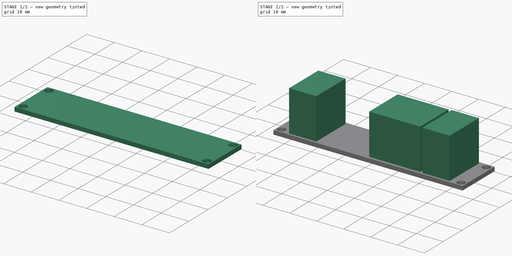
[diagram: build sequence overview — one tinted view per stage of 2, left to right]
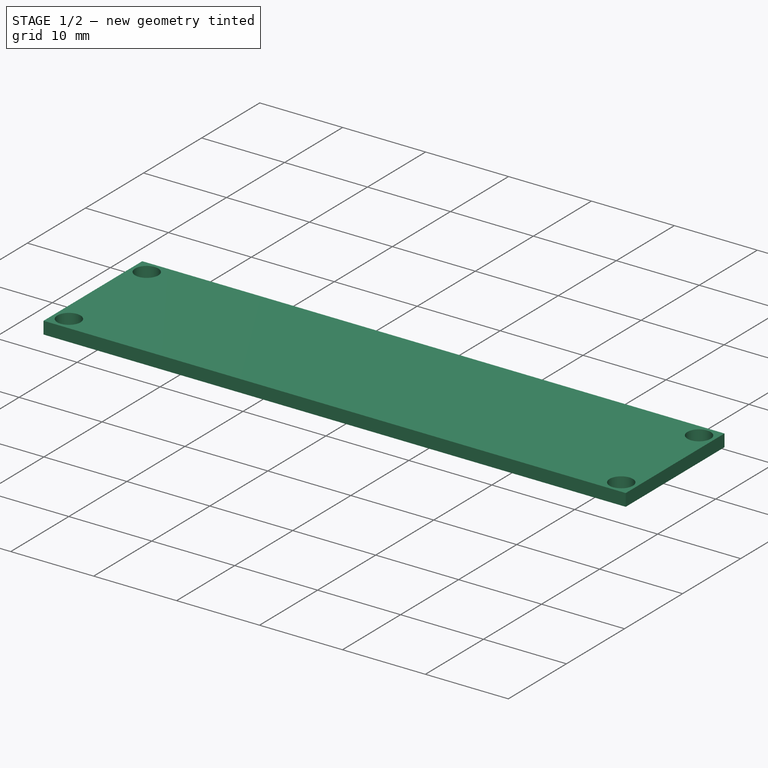
[diagram: stage 1 of 2 — iso view after this stage's code; geometry added in this stage tinted green]
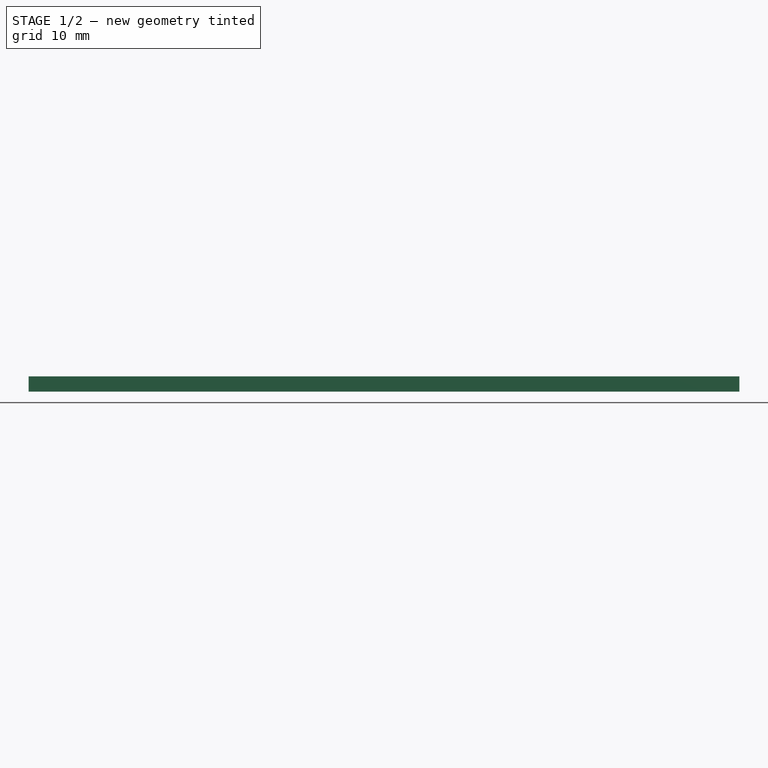
[diagram: stage 1 of 2 — front view after this stage's code; geometry added in this stage tinted green]
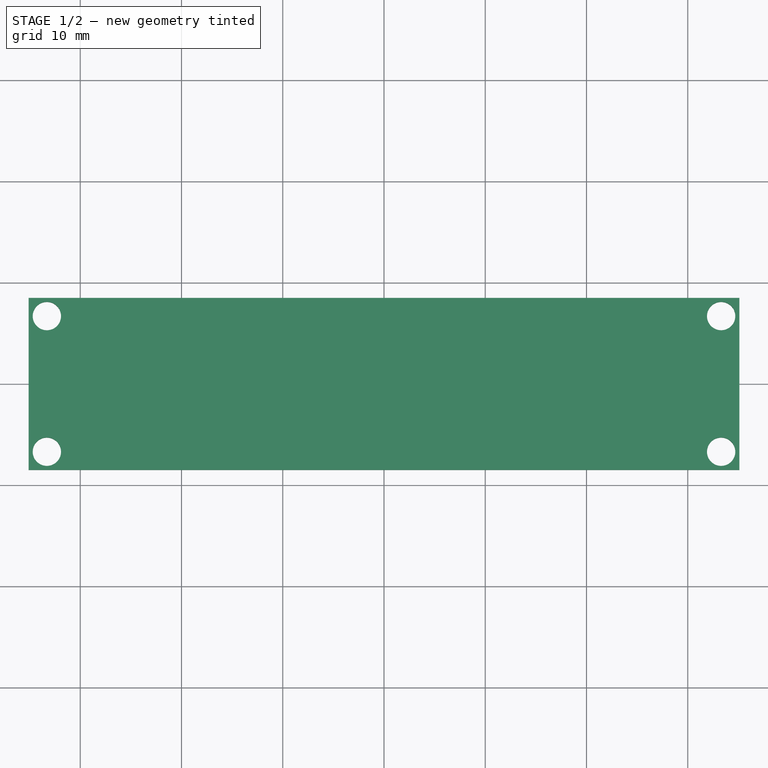
[diagram: stage 1 of 2 — top view after this stage's code; geometry added in this stage tinted green]
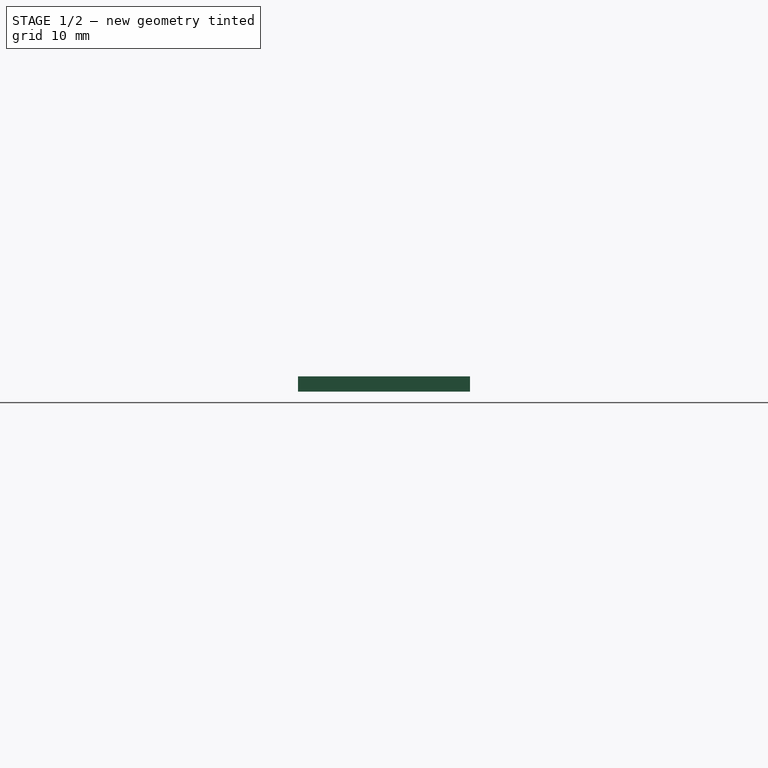
[diagram: stage 1 of 2 — right view after this stage's code; geometry added in this stage tinted green]
FCSTD DOCUMENT  (FreeCAD 0.22R36807 (Git))
Label: Relay Switch 3.3V in 10A, 250V out
License: Creative Commons Attribution 4.0
LicenseURL: https://creativecommons.org/licenses/by/4.0/
objects: Sketcher::SketchObject×2, PartDesign::Pad×2, Spreadsheet::Sheet×1, PartDesign::Body×1
note: 7 computed .brp shape members not serialized (recipe doc carries the construction recipe); baked Part::Feature solids carry a one-line shape summary decoded from their .brp

FEATURE [Spreadsheet::Sheet] Spreadsheet  label="config"
  cells = A2='width; B2(width)=17; A3='length; B3(length)=70.2; A4='boltHoleRadius; B4(boltHoleRadius)=1.4; A5='boltHoleDistanceFromEdge; B5(boltHoleCenterToEdge)=1.8
FEATURE [Sketcher::SketchObject] Sketch
  AttachmentSupport = -> [XY_Plane]
  FullyConstrained = true
  MapMode = 5
  expr: Constraints[12] = <<config>>.boltHoleRadius
  expr: Constraints[18] = <<config>>.boltHoleCenterToEdge
  expr: Constraints[19] = <<config>>.boltHoleCenterToEdge
  expr: Constraints[20] = <<config>>.boltHoleCenterToEdge
  expr: Constraints[21] = <<config>>.boltHoleCenterToEdge
  sketch-geometry (9):
    g0: LineSegment StartX=-35.1 StartY=-8.5 StartZ=0 EndX=35.1 EndY=-8.5 EndZ=0
    g1: LineSegment StartX=35.1 StartY=-8.5 StartZ=0 EndX=35.1 EndY=8.5 EndZ=0
    g2: LineSegment StartX=35.1 StartY=8.5 StartZ=0 EndX=-35.1 EndY=8.5 EndZ=0
    g3: LineSegment StartX=-35.1 StartY=8.5 StartZ=0 EndX=-35.1 EndY=-8.5 EndZ=0
    g4: GeomPoint X=0 Y=0 Z=0
    g5: Circle CenterX=-33.3 CenterY=6.7 CenterZ=0 NormalX=0 NormalY=0 NormalZ=1 AngleXU=0 Radius=1.4
    g6: Circle CenterX=33.3 CenterY=6.7 CenterZ=0 NormalX=0 NormalY=0 NormalZ=1 AngleXU=0 Radius=1.4
    g7: Circle CenterX=-33.3 CenterY=-6.7 CenterZ=0 NormalX=0 NormalY=0 NormalZ=1 AngleXU=0 Radius=1.4
    g8: Circle CenterX=33.3 CenterY=-6.7 CenterZ=0 NormalX=0 NormalY=0 NormalZ=1 AngleXU=0 Radius=1.4
  constraints (22):
    c: Coincident(g0,g1)
    c: Coincident(g1,g2)
    c: Coincident(g2,g3)
    c: Coincident(g3,g0)
    c: Horizontal(g0)
    c: Horizontal(g2)
    c: Vertical(g1)
    c: Vertical(g3)
    c: Symmetric(g2,g0,g4)
    c: Distance(g1,g3) = 70.2
    c: Distance(g0,g2) = 17
    c: Coincident(g4,g-1)
    c: Radius(g5) = 1.4
    c: Equal(g7,g8)
    c: Equal(g8,g6)
    c: Equal(g6,g5)
    c: Symmetric(g5,g8,g4)
    c: Symmetric(g7,g6,g4)
    c: DistanceX(g2,g5) = 1.8
    c: DistanceX(g6,g1) = 1.8
    c: DistanceY(g5,g2) = 1.8
    c: DistanceY(g6,g1) = 1.8
FEATURE [PartDesign::Pad] Pad
  Direction = (0,0,1)
  Length = 1.5
  Length2 = 10
  Profile = -> Sketch
  ReferenceAxis = -> Sketch [N_Axis]
  Suppressed = false
  Type = 0
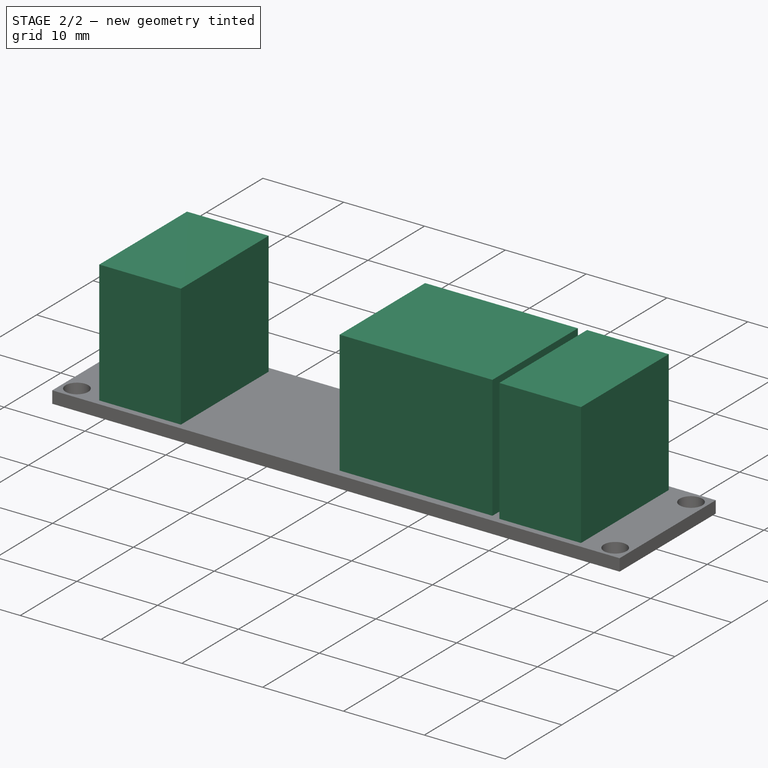
[diagram: stage 2 of 2 — iso view after this stage's code; geometry added in this stage tinted green]
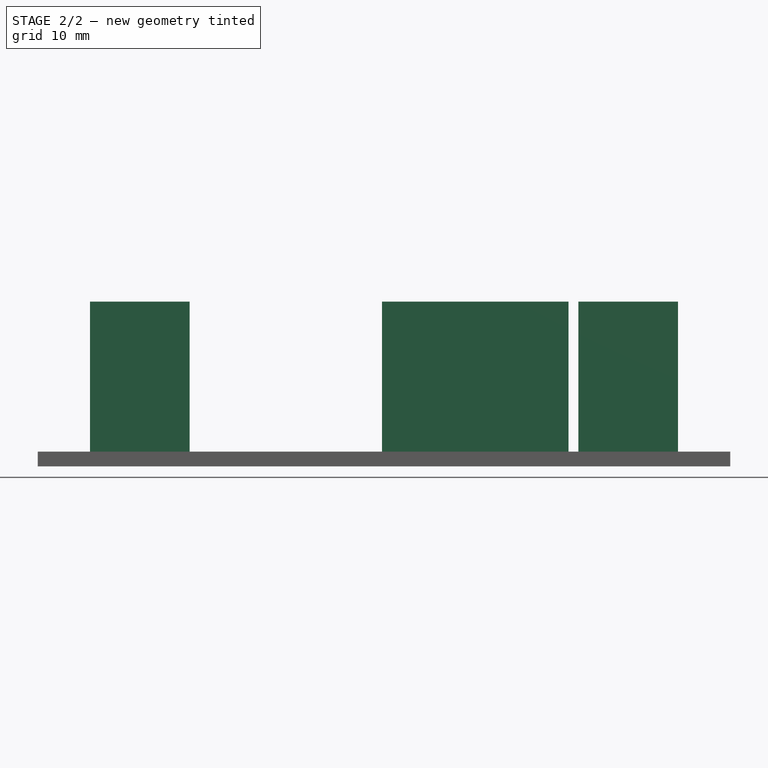
[diagram: stage 2 of 2 — front view after this stage's code; geometry added in this stage tinted green]
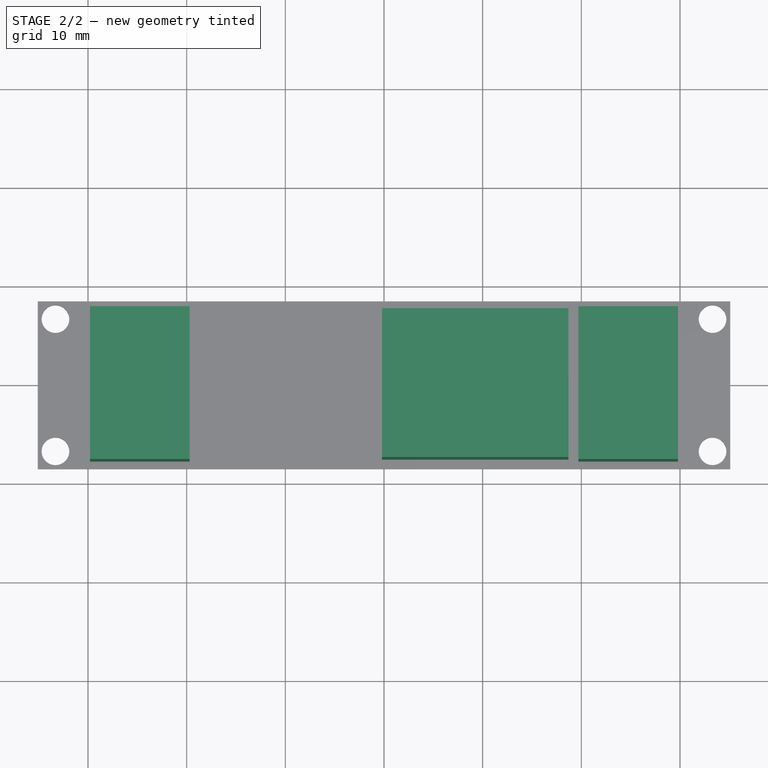
[diagram: stage 2 of 2 — top view after this stage's code; geometry added in this stage tinted green]
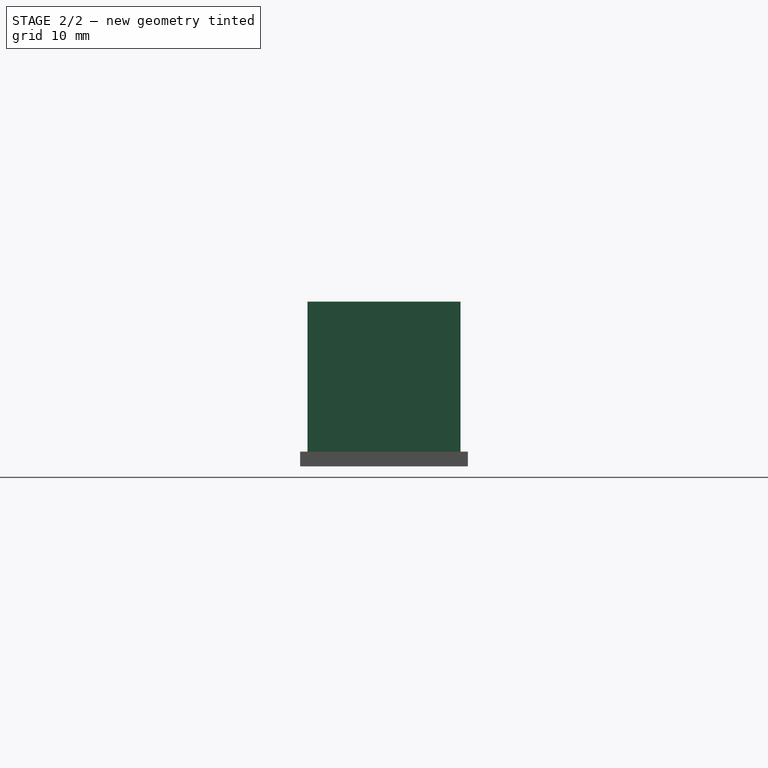
[diagram: stage 2 of 2 — right view after this stage's code; geometry added in this stage tinted green]
FEATURE [Sketcher::SketchObject] Sketch001
  AttachmentSupport = -> [Pad]
  ExternalGeometry = -> [Sketch]
  FullyConstrained = true
  MapMode = 5
  Placement = pos=(0,0,1.5) rot=(0,0,1;0rad)
  sketch-geometry (12):
    g0: LineSegment StartX=-29.8 StartY=7.75 StartZ=0 EndX=-29.8 EndY=-7.75 EndZ=0
    g1: LineSegment StartX=-29.8 StartY=-7.75 StartZ=0 EndX=-19.7 EndY=-7.75 EndZ=0
    g2: LineSegment StartX=-19.7 StartY=-7.75 StartZ=0 EndX=-19.7 EndY=7.75 EndZ=0
    g3: LineSegment StartX=-19.7 StartY=7.75 StartZ=0 EndX=-29.8 EndY=7.75 EndZ=0
    g4: LineSegment StartX=19.7 StartY=7.75 StartZ=0 EndX=19.7 EndY=-7.75 EndZ=0
    g5: LineSegment StartX=19.7 StartY=-7.75 StartZ=0 EndX=29.8 EndY=-7.75 EndZ=0
    g6: LineSegment StartX=29.8 StartY=-7.75 StartZ=0 EndX=29.8 EndY=7.75 EndZ=0
    g7: LineSegment StartX=29.8 StartY=7.75 StartZ=0 EndX=19.7 EndY=7.75 EndZ=0
    g8: LineSegment StartX=-0.2 StartY=7.55 StartZ=0 EndX=-0.2 EndY=-7.55 EndZ=0
    g9: LineSegment StartX=-0.2 StartY=-7.55 StartZ=0 EndX=18.7 EndY=-7.55 EndZ=0
    g10: LineSegment StartX=18.7 StartY=-7.55 StartZ=0 EndX=18.7 EndY=7.55 EndZ=0
    g11: LineSegment StartX=18.7 StartY=7.55 StartZ=0 EndX=-0.2 EndY=7.55 EndZ=0
  constraints (33):
    c: Coincident(g0,g1)
    c: Coincident(g1,g2)
    c: Coincident(g2,g3)
    c: Coincident(g3,g0)
    c: Vertical(g0)
    c: Horizontal(g1)
    c: Horizontal(g3)
    c: Distance(g0,g2) = 10.1
    c: Distance(g1,g3) = 15.5
    c: DistanceX(g-4,g0) = 5.3
    c: Symmetric(g2,g1,g-1)
    c: Coincident(g4,g5)
    c: Coincident(g5,g6)
    c: Coincident(g6,g7)
    c: Coincident(g7,g4)
    c: Vertical(g4)
    c: Vertical(g6)
    c: Horizontal(g5)
    c: Horizontal(g7)
    c: Equal(g7,g3)
    c: Equal(g6,g2)
    c: Symmetric(g4,g1,g-1)
    c: Coincident(g8,g9)
    c: Coincident(g9,g10)
    c: Coincident(g10,g11)
    c: Coincident(g11,g8)
    c: Vertical(g8)
    c: Horizontal(g9)
    c: Horizontal(g11)
    c: Distance(g8,g10) = 18.9
    c: Distance(g9,g11) = 15.1
    c: Symmetric(g10,g9,g-1)
    c: DistanceX(g10,g4) = 1
FEATURE [PartDesign::Pad] Pad001
  BaseFeature = -> Pad
  Direction = (0,0,1)
  Length = 15.2
  Length2 = 10
  Profile = -> Sketch001
  ReferenceAxis = -> Sketch001 [N_Axis]
  Suppressed = false
  Type = 0
FEATURE [PartDesign::Body] Body
  Group = -> [Sketch,Pad,Sketch001,Pad001]
  Origin = -> Origin
  Tip = -> Pad001
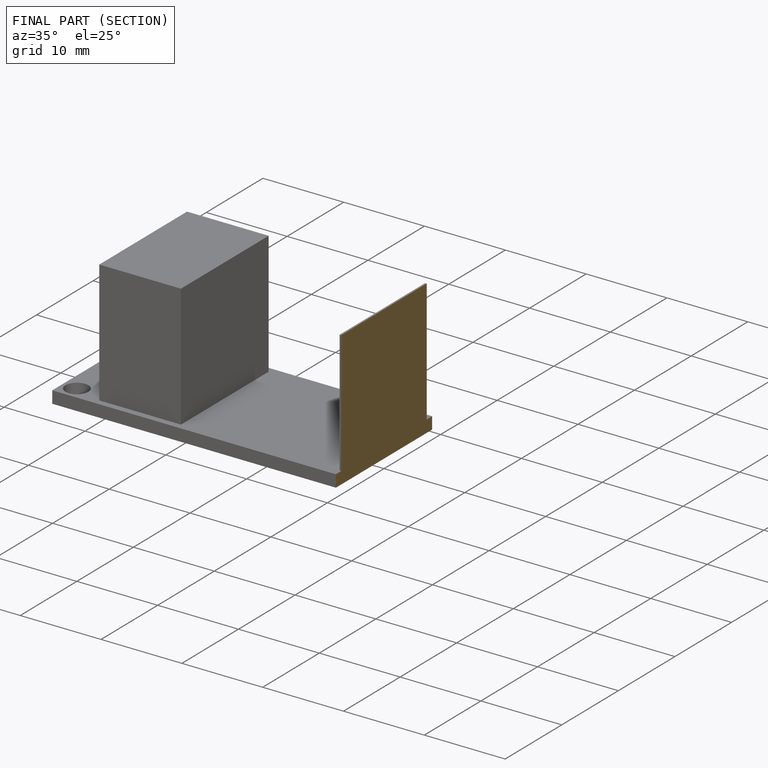
[diagram: finished part — half-section view (interior)]
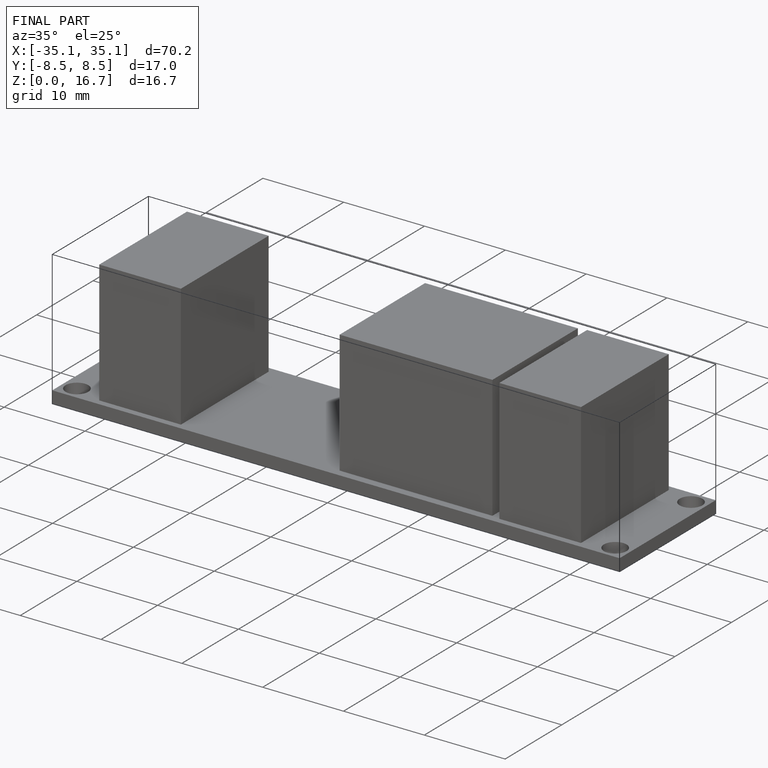
[diagram: finished part — iso view with bounding-box wireframe]
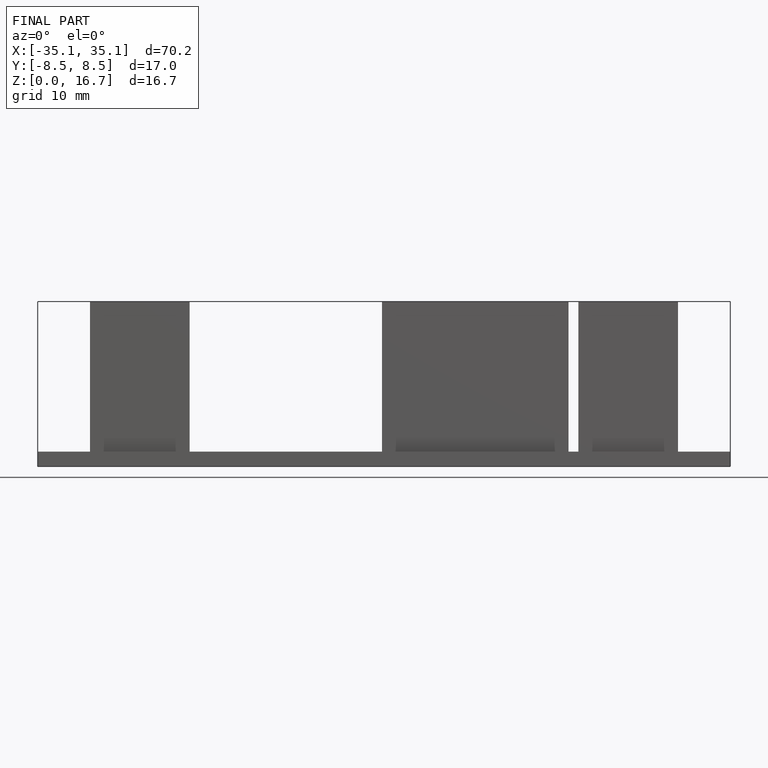
[diagram: finished part — front view with bounding-box wireframe]
